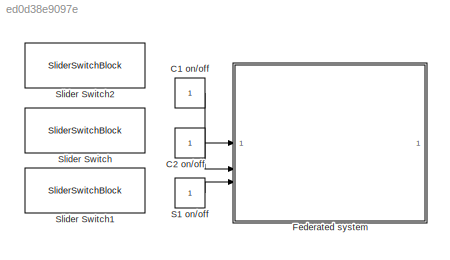
MODEL slx_ed0d38e9097e
KIND model
CONFIG AbsTol = auto
CONFIG EnableMultiTasking = off
CONFIG FixedStep = auto
CONFIG MaxStep = auto
CONFIG MinStep = auto
CONFIG RelTol = 1e-3
CONFIG SampleTimeConstraint = Unconstrained
CONFIG SolverName = FixedStepAuto
CONFIG StartTime = 0.0
CONFIG StopTime = Inf
BLOCK [Constant] C1 on//off
BLOCK [Constant] C2 on//off
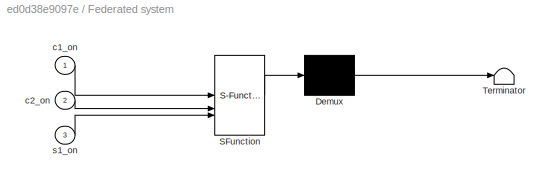
BLOCK [SubSystem] Federated system
  ErrorFcn = Stateflow.Translate.translate
  PermitHierarchicalResolution = ExplicitOnly
  SFBlockType = Chart
  TreatAsAtomicUnit = on
BLOCK [Demux] Federated system/ Demux 
  Outputs = 1
BLOCK [S-Function] Federated system/ SFunction 
  EnableBusSupport = on
  FunctionName = sf_sfun
  PortCounts = [3 1]
  SFcnIsStateOwnerBlock = off
  SFunctionDeploymentMode = off
  Tag = Stateflow S-Function 3
BLOCK [Terminator] Federated system/ Terminator 
BLOCK [Inport] Federated system/c1_on
BLOCK [Inport] Federated system/c2_on
  Port = 2
BLOCK [Inport] Federated system/s1_on
  Port = 3
BLOCK [Constant] S1 on//off
BLOCK [SliderSwitchBlock] Slider Switch
BLOCK [SliderSwitchBlock] Slider Switch1
BLOCK [SliderSwitchBlock] Slider Switch2
LINE C1 on//off:1 -> Federated system:1
LINE C2 on//off:1 -> Federated system:2
LINE S1 on//off:1 -> Federated system:3
CHART Federated system states=64 transitions=85
  STATE_LABEL 'Database'
  STATE_LABEL 'DATABASE_INTERFACE\n'
  STATE_LABEL 'CONFIGURATION\nentry:\nC_configuration.data = C_getConfiguration.data\nexit:\nsend(C_configuration)\nswitch C_getConfiguration.data\n    case "client1"\n        send(configuration,Client_1_box.Client_1.INIT.WAIT_FOR_CONFIGURATION)\n    case "client2"\n        send(configuration,Client_2_box.Client_2.INIT.WAIT_FOR_CONFIGURATION)\nend\n'
  STATE_LABEL 'SERVER_SELECTION\nentry:\nswitch C_serverSelection.data\n    case "server1"\n        if c1_on ==1 && c2_on ==1\n            s1_clients =2;\n        else s1_clients=1\n        end\nend\n'
  STATE_LABEL 'JOB\nentry:\nif c1_state == "wait_for_job"\n    send(S1_sendJob,Client_1_box.Client_1.READY.WAIT_FOR_JOB)\nend\nif c2_state == "wait_for_job"\n    send(S1_sendJob,Client_2_box.Client_2.READY.WAIT_FOR_JOB)\nend'
  STATE_LABEL 'LOCAL_MODEL\nentry:\nsend(C_localWeights,Server__box.Server_1)\n'
  STATE_LABEL 'GLOBAL_MODEL\nentry:\nif c1_state == "model_trained"\n    send(S1_globalWeights,Client_1_box.Client_1.WAIT_FOR_DATA)\nend\nif c2_state == "model_trained"\n    send(S1_globalWeights,Client_2_box.Client_2.WAIT_FOR_DATA)\nend'
  STATE_LABEL 'GLOBAL_MODEL1\nentry:\n    send(S_globalModel,Client_1_box.Client_1.RESTORE)\n    send(S_globalModel,Client_2_box.Client_2.RESTORE)'
  STATE_LABEL 'C_getConfiguration'
  STATE_LABEL 'C_serverSelection'
  STATE_LABEL 'S1_sendJob'
  STATE_LABEL 'C_localWeights'
  STATE_LABEL 'S1_globalWeights'
  STATE_LABEL 'C_getGlobalModel'
  STATE_LABEL 'DATABASE_INTERFACE\n'
  STATE_LABEL 'CONFIGURATION\nentry:\nC_configuration.data = C_getConfiguration.data\nexit:\nsend(C_configuration)\nswitch C_getConfiguration.data\n    case "client1"\n        send(configuration,Client_1_box.Client_1.INIT.WAIT_FOR_CONFIGURATION)\n    case "client2"\n        send(configuration,Client_2_box.Client_2.INIT.WAIT_FOR_CONFIGURATION)\nend\n'
  STATE_LABEL 'SERVER_SELECTION\nentry:\nswitch C_serverSelection.data\n    case "server1"\n        if c1_on ==1 && c2_on ==1\n            s1_clients =2;\n        else s1_clients=1\n        end\nend\n'
  STATE_LABEL 'JOB\nentry:\nif c1_state == "wait_for_job"\n    send(S1_sendJob,Client_1_box.Client_1.READY.WAIT_FOR_JOB)\nend\nif c2_state == "wait_for_job"\n    send(S1_sendJob,Client_2_box.Client_2.READY.WAIT_FOR_JOB)\nend'
  STATE_LABEL 'LOCAL_MODEL\nentry:\nsend(C_localWeights,Server__box.Server_1)\n'
  STATE_LABEL 'GLOBAL_MODEL\nentry:\nif c1_state == "model_trained"\n    send(S1_globalWeights,Client_1_box.Client_1.WAIT_FOR_DATA)\nend\nif c2_state == "model_trained"\n    send(S1_globalWeights,Client_2_box.Client_2.WAIT_FOR_DATA)\nend'
  STATE_LABEL 'GLOBAL_MODEL1\nentry:\n    send(S_globalModel,Client_1_box.Client_1.RESTORE)\n    send(S_globalModel,Client_2_box.Client_2.RESTORE)'
  STATE_LABEL 'Client_2_box'
  STATE_LABEL 'Client_2'
  STATE_LABEL 'INIT\n\n'
  STATE_LABEL 'READY\nentry:\nc2_state = "online"\nexit:\nC_getConfiguration.data = "client2"\nsend(C_getConfiguration)\nsend(C2_getConfiguration,Database)\n'
  STATE_LABEL 'WAIT_FOR_CONFIGURATION\nentry,during:\nc2_state = "wait_for_configuration"\nif receive(C_configuration) && C_configuration.data == "client2"\n    c2_set_configuration = true\n    c2_model_version = s1_model_version\n    c2_model_ready = true\nend'
  STATE_LABEL '[c2_on==1]'
  STATE_LABEL 'after(60,sec)'
  STATE_LABEL 'OFF\nentry:\nif c2_set_configuration == true\n    s1_clients = s1_clients - 1;\n    c2_set_configuration = false;\nend'
  STATE_LABEL 'CONFIGURATION\nentry:\nc2_state = "configuration"\nexit:\nC_serverSelection.data = "server1"\nsend(C_serverSelection)\nsend(C2_serverSelection,Database)'
  STATE_LABEL 'READY\n\n'
  STATE_LABEL 'READY_TO_JOB\nentry:\nc2_state = "ready"\nsend(C2_readyToJob,Database)'
  STATE_LABEL 'WAIT_FOR_JOB\nentry,during:\nc2_state = "wait_for_job"\nif s1_state== "send_job"\n    c2_job = true;\n    c2_rounds = 0;\nend'
  STATE_LABEL '[c2_on == 1]'
  STATE_LABEL 'RESTORE\nentry:\nc2_state = "restore"\nc2_model_ready = false;\nsend (C_getGlobalModel,Database)\nduring:\nif s1_model_version > c2_model_version\n    c2_model_ready = true;\n    c2_model_version = s1_model_version;\nend'
  STATE_LABEL 'GATHER_DATA\nentry:\nc2_state = "gather_data"\n'
  STATE_LABEL 'WAIT_FOR_DATA\nentry,during:\nc2_state = "model_trained"\nif c2_rounds == 3\n    c2_job = false\nend\nif s1_state == "global_round_trained"\n    c2_model_ready = true;\nend\n'
  STATE_LABEL 'TRAINING_MODEL\n\n'
  STATE_LABEL 'MODEL_TRAINED\nentry:\nc2_state = "model_trained"\nc2_rounds = c2_rounds + 1;\nc2_model_ready = false;\nsend(C_localWeights,Database)'
  STATE_LABEL 'TRAINING\nentry:\nc2_state = "training"'
CHART  states=0 transitions=0
